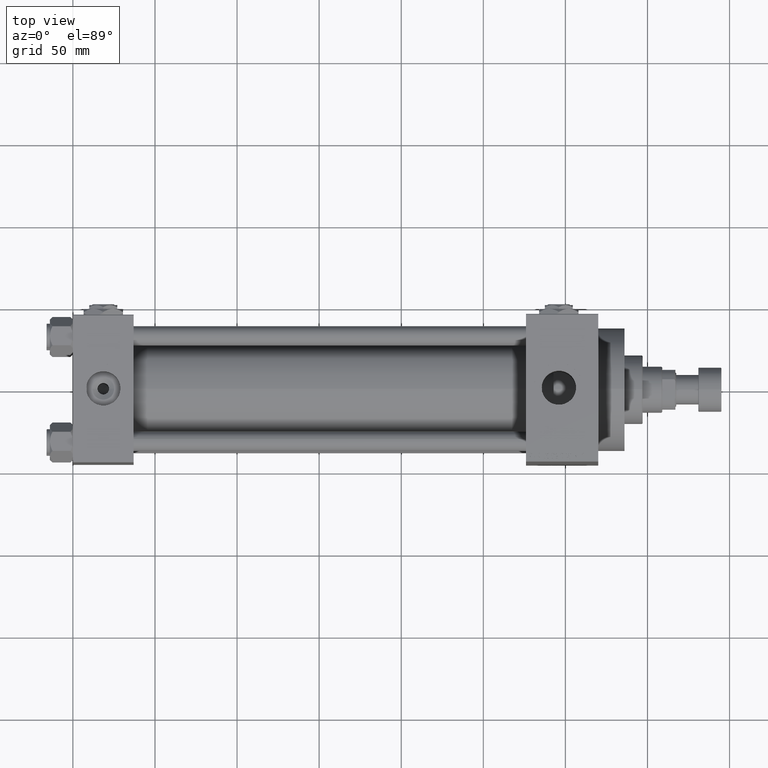
[diagram: clean part render]
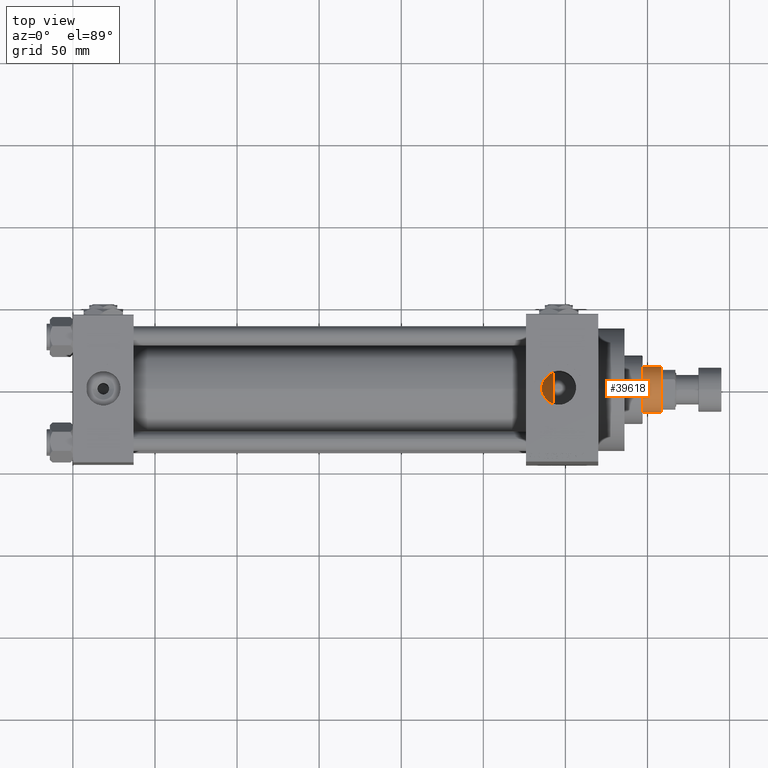
[diagram: same view with one face highlighted and labeled with its STEP entity id]
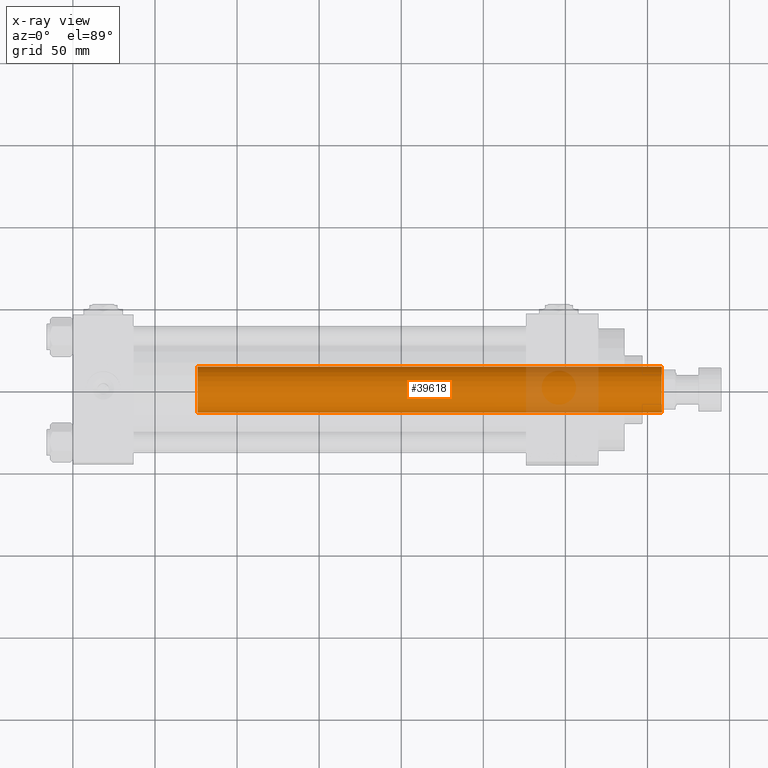
[diagram: x-ray of the same camera — body ghosted, the highlighted face saturated]
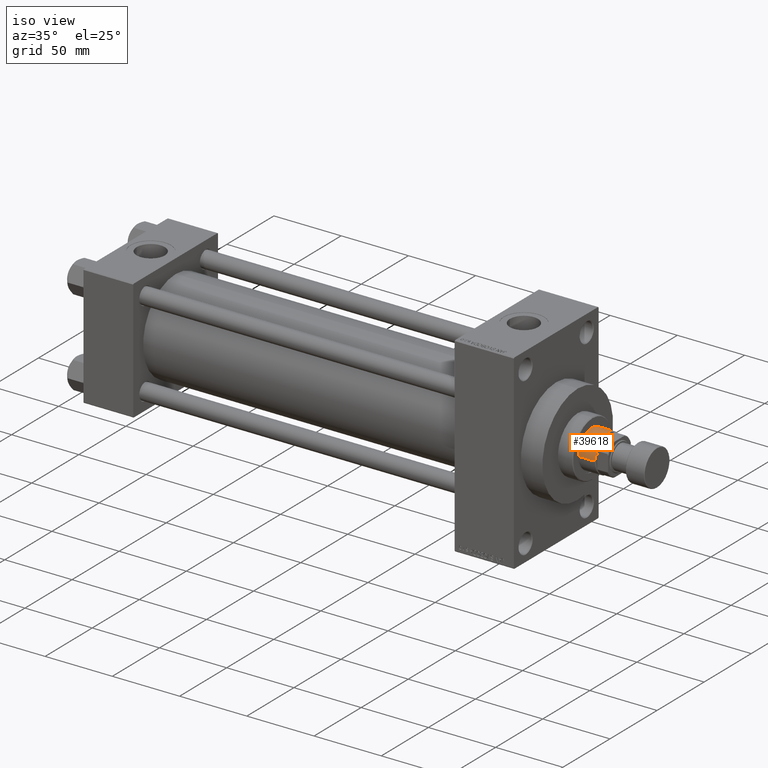
[diagram: same view with one face highlighted and labeled with its STEP entity id]
A machine part, top view. The second image highlights one B-rep face of the part: STEP entity #39618.
The next image is the same camera in x-ray: the body ghosted, the highlighted face saturated — about 11% of this face is hidden behind the body in this view.
A second angle (iso view) of the same face is appended — the face is thin or edge-on in the first view.
In plain terms, the highlighted cylindrical surface (edge-blend (fillet) strip) has radius 14 mm, axis along (-1, 0, 0).
Its self-contained STEP definition (entity closure, byte-faithful):
#185 = DIRECTION ( 'NONE',  ( 1.000000000000000000, 0.000000000000000000, 0.000000000000000000 ) ) ;
#3976 = DIRECTION ( 'NONE',  ( 0.000000000000000000, 0.000000000000000000, -1.000000000000000000 ) ) ;
#4477 = CARTESIAN_POINT ( 'NONE',  ( 0.000000000000000000, 0.000000000000000000, 321.4999999999999432 ) ) ;
#6088 = VECTOR ( 'NONE', #22534, 1000.000000000000000 ) ;
#6909 = CARTESIAN_POINT ( 'NONE',  ( 14.00000000000000178, 1.714505518806294835E-15, 39.00000000000000000 ) ) ;
#7537 = DIRECTION ( 'NONE',  ( -0.000000000000000000, -0.000000000000000000, -1.000000000000000000 ) ) ;
#9928 = AXIS2_PLACEMENT_3D ( 'NONE', #46730, #12243, #27627 ) ;
#11310 = FACE_OUTER_BOUND ( 'NONE', #25789, .T. ) ;
#12243 = DIRECTION ( 'NONE',  ( 0.000000000000000000, 0.000000000000000000, 1.000000000000000000 ) ) ;
#12442 = CARTESIAN_POINT ( 'NONE',  ( -14.00000000000000178, 0.000000000000000000, 321.4999999999999432 ) ) ;
#16333 = CARTESIAN_POINT ( 'NONE',  ( 14.00000000000000178, 1.714505518806294835E-15, 321.9999999999999432 ) ) ;
#16838 = DIRECTION ( 'NONE',  ( -0.000000000000000000, -0.000000000000000000, -1.000000000000000000 ) ) ;
#20331 = AXIS2_PLACEMENT_3D ( 'NONE', #42010, #7537, #46304 ) ;
#22353 = VERTEX_POINT ( 'NONE', #47232 ) ;
#22534 = DIRECTION ( 'NONE',  ( -0.000000000000000000, -0.000000000000000000, -1.000000000000000000 ) ) ;
#25357 = VERTEX_POINT ( 'NONE', #6909 ) ;
#25789 = EDGE_LOOP ( 'NONE', ( #40900, #47942, #43728, #28756 ) ) ;
#27627 = DIRECTION ( 'NONE',  ( 1.000000000000000000, 0.000000000000000000, 0.000000000000000000 ) ) ;
#28756 = ORIENTED_EDGE ( 'NONE', *, *, #45298, .T. ) ;
#30952 = CYLINDRICAL_SURFACE ( 'NONE', #20331, 14.00000000000000178 ) ;
#31658 = CIRCLE ( 'NONE', #9928, 14.00000000000000178 ) ;
#31782 = CIRCLE ( 'NONE', #43796, 14.00000000000000178 ) ;
#32250 = VERTEX_POINT ( 'NONE', #12442 ) ;
#32394 = CARTESIAN_POINT ( 'NONE',  ( 14.00000000000000178, 1.714505518806294835E-15, 321.4999999999999432 ) ) ;
#34507 = VECTOR ( 'NONE', #16838, 1000.000000000000000 ) ;
#34604 = LINE ( 'NONE', #37875, #6088 ) ;
#36122 = EDGE_CURVE ( 'NONE', #47740, #25357, #47309, .T. ) ;
#37875 = CARTESIAN_POINT ( 'NONE',  ( -14.00000000000000178, 0.000000000000000000, 321.9999999999999432 ) ) ;
#39618 = ADVANCED_FACE ( 'NONE', ( #11310 ), #30952, .T. ) ;
#40900 = ORIENTED_EDGE ( 'NONE', *, *, #36122, .F. ) ;
#42010 = CARTESIAN_POINT ( 'NONE',  ( 0.000000000000000000, 0.000000000000000000, 321.9999999999999432 ) ) ;
#43728 = ORIENTED_EDGE ( 'NONE', *, *, #49340, .T. ) ;
#43796 = AXIS2_PLACEMENT_3D ( 'NONE', #4477, #3976, #185 ) ;
#45250 = EDGE_CURVE ( 'NONE', #47740, #32250, #31782, .T. ) ;
#45298 = EDGE_CURVE ( 'NONE', #22353, #25357, #31658, .T. ) ;
#46304 = DIRECTION ( 'NONE',  ( -1.000000000000000000, 0.000000000000000000, 0.000000000000000000 ) ) ;
#46730 = CARTESIAN_POINT ( 'NONE',  ( 0.000000000000000000, 0.000000000000000000, 39.00000000000000000 ) ) ;
#47232 = CARTESIAN_POINT ( 'NONE',  ( -14.00000000000000178, 0.000000000000000000, 39.00000000000000000 ) ) ;
#47309 = LINE ( 'NONE', #16333, #34507 ) ;
#47740 = VERTEX_POINT ( 'NONE', #32394 ) ;
#47942 = ORIENTED_EDGE ( 'NONE', *, *, #45250, .T. ) ;
#49340 = EDGE_CURVE ( 'NONE', #32250, #22353, #34604, .T. ) ;